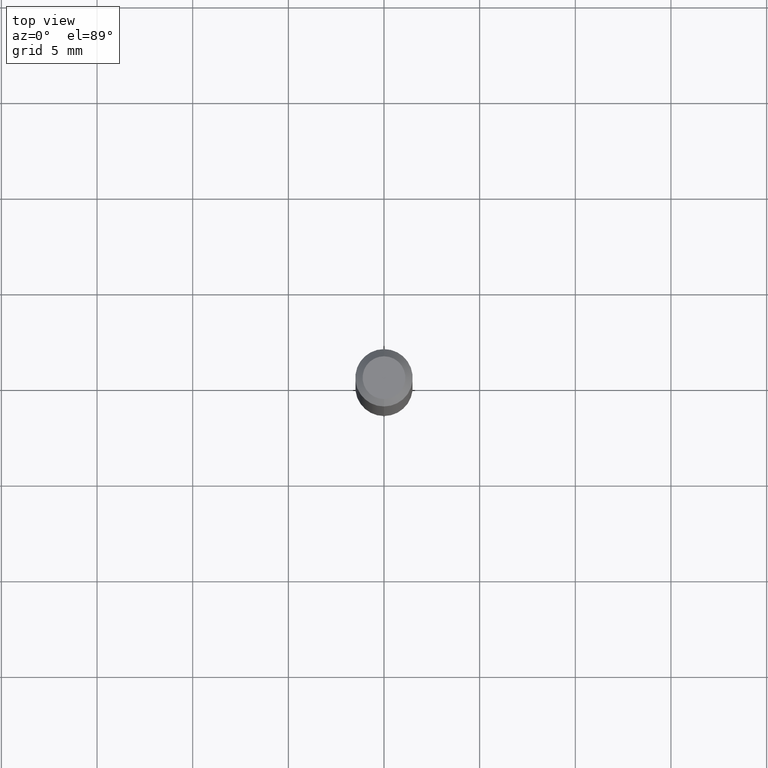
[diagram: clean part render]
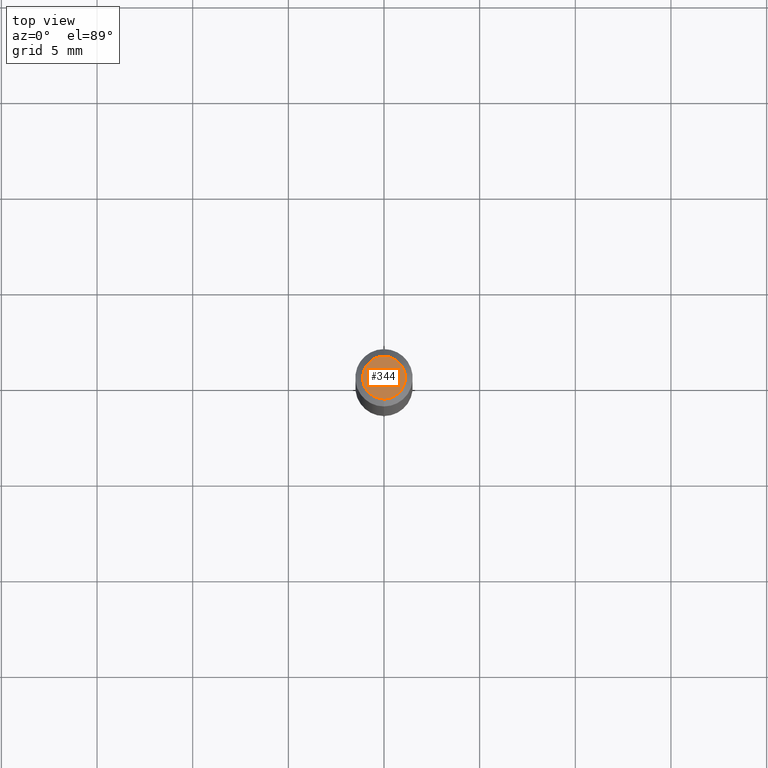
[diagram: same view with one face highlighted and labeled with its STEP entity id]
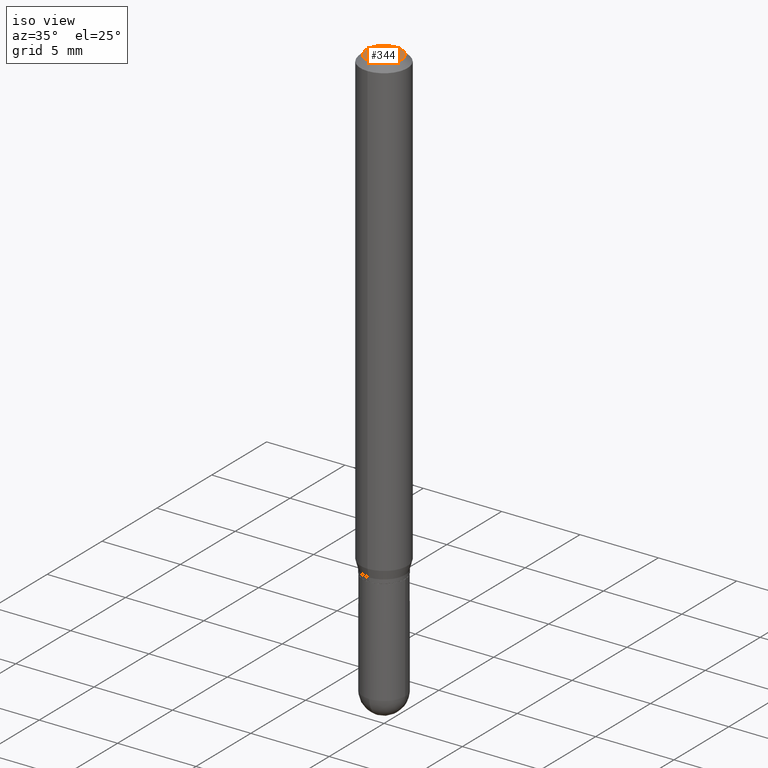
[diagram: same view with one face highlighted and labeled with its STEP entity id]
A machine part, top view. The second image highlights one B-rep face of the part: STEP entity #344.
A second angle (iso view) of the same face is appended — the face is thin or edge-on in the first view.
In plain terms, the highlighted planar face has unit normal (0, -0, -1).
Its self-contained STEP definition (entity closure, byte-faithful):
#17 = EDGE_CURVE ( 'NONE', #70, #512, #123, .T. ) ;
#27 = DIRECTION ( 'NONE',  ( 2.445529558203233475E-29, -3.491394338495440431E-15, -1.000000000000000000 ) ) ;
#53 = DIRECTION ( 'NONE',  ( -6.982962677686265133E-15, -1.000000000000000000, 3.491394338495440037E-15 ) ) ;
#70 = VERTEX_POINT ( 'NONE', #468 ) ;
#110 = CARTESIAN_POINT ( 'NONE',  ( 2.241783815963458696E-45, -3.200513891533619113E-31, -9.166864528149599490E-17 ) ) ;
#123 = CIRCLE ( 'NONE', #156, 0.04404999999999999888 ) ;
#143 = ORIENTED_EDGE ( 'NONE', *, *, #450, .T. ) ;
#156 = AXIS2_PLACEMENT_3D ( 'NONE', #110, #501, #309 ) ;
#158 = AXIS2_PLACEMENT_3D ( 'NONE', #258, #460, #53 ) ;
#221 = CARTESIAN_POINT ( 'NONE',  ( -3.536586717851222218E-16, -0.04404999999999999888, 6.212727532922813649E-17 ) ) ;
#258 = CARTESIAN_POINT ( 'NONE',  ( 2.241783815963458696E-45, -3.200513891533619113E-31, -9.166864528149599490E-17 ) ) ;
#279 = EDGE_LOOP ( 'NONE', ( #384, #143 ) ) ;
#297 = DIRECTION ( 'NONE',  ( 6.982962677686265922E-15, 1.000000000000000000, -3.491394338495440431E-15 ) ) ;
#309 = DIRECTION ( 'NONE',  ( -6.982962677686265133E-15, -1.000000000000000000, 3.491394338495440037E-15 ) ) ;
#326 = AXIS2_PLACEMENT_3D ( 'NONE', #409, #27, #297 ) ;
#337 = FACE_OUTER_BOUND ( 'NONE', #279, .T. ) ;
#344 = ADVANCED_FACE ( 'NONE', ( #337 ), #500, .F. ) ;
#384 = ORIENTED_EDGE ( 'NONE', *, *, #17, .T. ) ;
#409 = CARTESIAN_POINT ( 'NONE',  ( 3.075995059520799729E-16, 0.04404999999999999888, -1.996302432514721350E-16 ) ) ;
#450 = EDGE_CURVE ( 'NONE', #512, #70, #461, .T. ) ;
#460 = DIRECTION ( 'NONE',  ( -2.445529558203233755E-29, 3.491394338495440431E-15, 1.000000000000000000 ) ) ;
#461 = CIRCLE ( 'NONE', #158, 0.04404999999999999888 ) ;
#468 = CARTESIAN_POINT ( 'NONE',  ( 3.599717260347271507E-16, 0.04404999999999999888, -2.454645658922201386E-16 ) ) ;
#500 = PLANE ( 'NONE',  #326 ) ;
#501 = DIRECTION ( 'NONE',  ( -2.445529558203233755E-29, 3.491394338495440431E-15, 1.000000000000000000 ) ) ;
#512 = VERTEX_POINT ( 'NONE', #221 ) ;